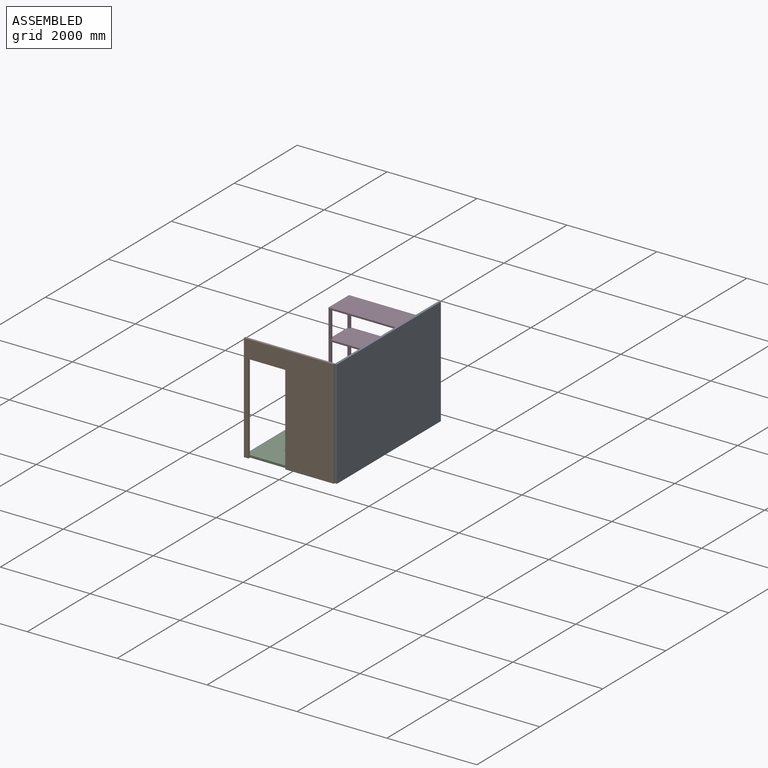
[diagram: assembled view]
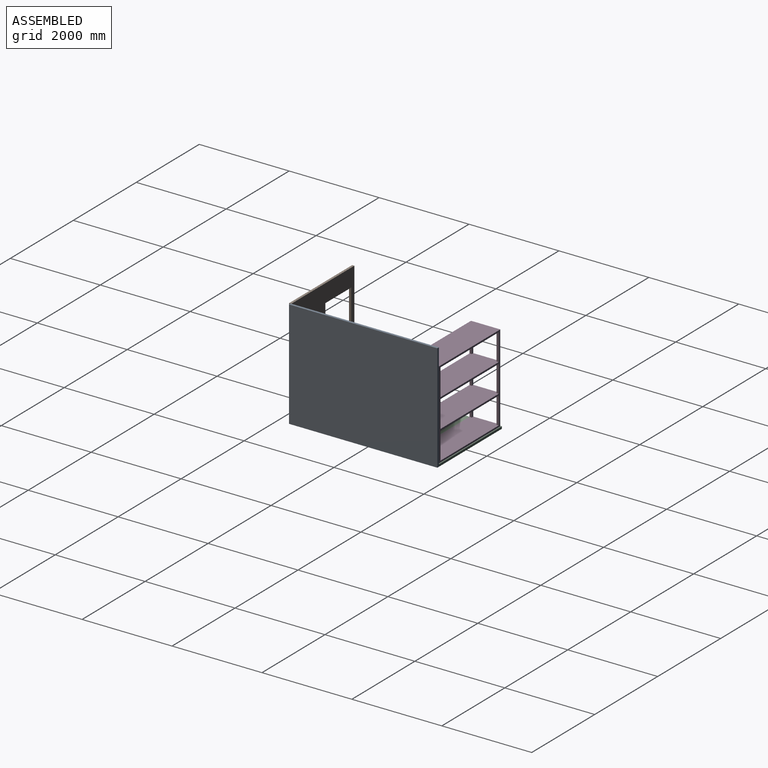
[diagram: assembled view, second angle]
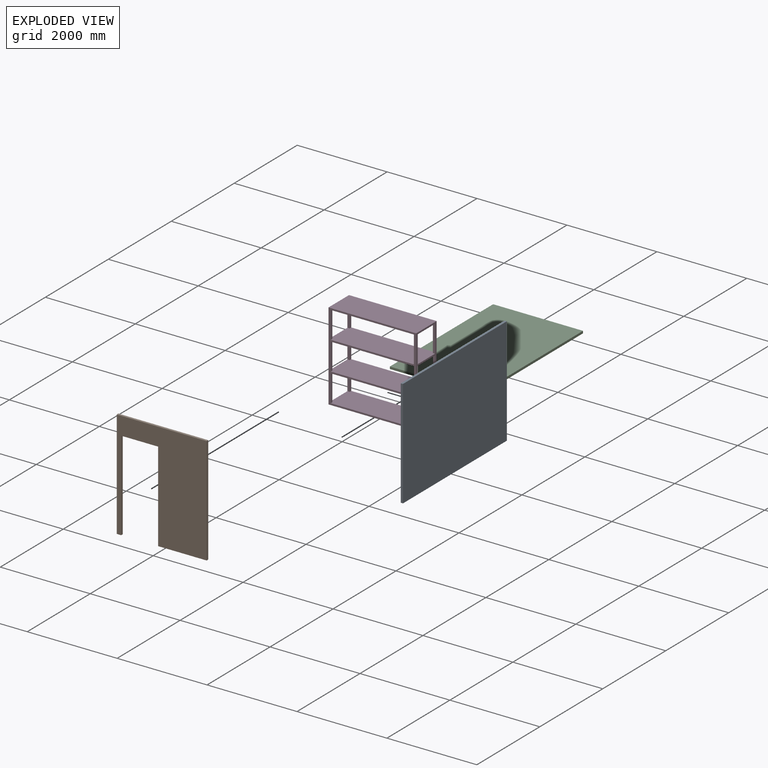
[diagram: exploded view]
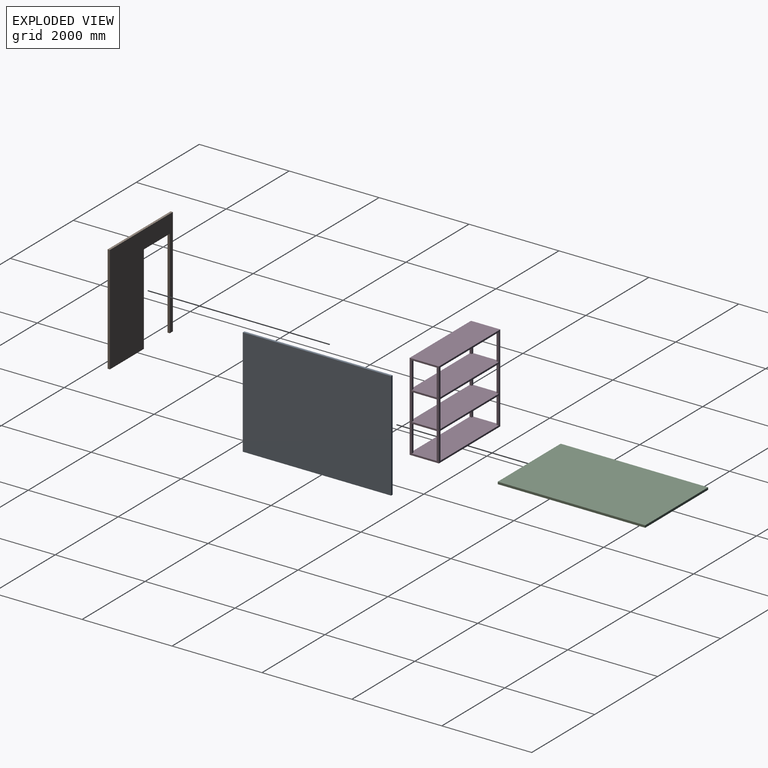
[diagram: exploded view, second angle]
ASSEMBLY  parts=4 mates=7
PART A: 6 faces, bbox 50x3300x2400 mm
  f0: plane 2400x50mm, normal (0,-1,0), area 120000mm2, adj f1,f3,f4,f5
  f1: plane 3300x50mm, normal (0,0,-1), area 165000mm2, adj f0,f2,f4,f5
  f2: plane 2400x50mm, normal (0,1,0), area 120000mm2, adj f1,f3,f4,f5
  f3: plane 3300x50mm, normal (0,0,1), area 165000mm2, adj f0,f2,f4,f5
  f4: plane 3300x2400mm, normal (1,0,0), area 7920000mm2, adj f0,f1,f2,f3
  f5: plane 3300x2400mm, normal (-1,0,0), area 7920000mm2, adj f0,f1,f2,f3
PART B: 10 faces, bbox 2000x50x2400 mm
  f0: plane 1080x50mm, normal (0,0,-1), area 54000mm2, adj f3,f5,f6,f7
  f1: plane 2400x50mm, normal (-1,0,0), area 120000mm2, adj f2,f4,f5,f6
  f2: plane 100x50mm, normal (0,0,-1), area 5000mm2, adj f1,f5,f6,f9
  f3: plane 2400x50mm, normal (1,0,0), area 120000mm2, adj f0,f4,f5,f6
  f4: plane 2000x50mm, normal (0,0,1), area 100000mm2, adj f1,f3,f5,f6
  f5: plane 2400x2000mm, normal (0,-1,0), area 3160000mm2, adj f0,f1,f2,f3,f4,f7,f8,f9
  f6: plane 2400x2000mm, normal (0,1,0), area 3160000mm2, adj f0,f1,f2,f3,f4,f7,f8,f9
  f7: plane 2000x50mm, normal (-1,0,0), area 100000mm2, adj f0,f5,f6,f8
  f8: plane 820x50mm, normal (0,0,-1), area 41000mm2, adj f5,f6,f7,f9
  f9: plane 2000x50mm, normal (1,0,0), area 100000mm2, adj f2,f5,f6,f8
PART C: 6 faces, bbox 2000x3280x50 mm
  f0: plane 3280x50mm, normal (-1,0,0), area 164000mm2, adj f1,f3,f4,f5
  f1: plane 2000x50mm, normal (0,-1,0), area 100000mm2, adj f0,f2,f4,f5
  f2: plane 3280x50mm, normal (1,0,0), area 164000mm2, adj f1,f3,f4,f5
  f3: plane 2000x50mm, normal (0,1,0), area 100000mm2, adj f0,f2,f4,f5
  f4: plane 3280x2000mm, normal (0,0,1), area 6560000mm2, adj f0,f1,f2,f3
  f5: plane 3280x2000mm, normal (0,0,-1), area 6560000mm2, adj f0,f1,f2,f3
PART D: 36 faces, bbox 1950x650x1950 mm
  f0: plane 1950x650mm, normal (-1,0,0), area 277500mm2, adj f8,f9,f10,f11,f12,f14,f16,f18
  f1: plane 1950x650mm, normal (1,0,0), area 277500mm2, adj f8,f9,f10,f11,f12,f14,f16,f18
  f2: plane 600x50mm, normal (1,0,0), area 30000mm2, adj f9,f12,f14,f34
  f3: plane 600x50mm, normal (-1,0,0), area 30000mm2, adj f9,f12,f14,f33
  f4: plane 600x50mm, normal (1,0,0), area 30000mm2, adj f9,f16,f18,f30
  f5: plane 600x50mm, normal (-1,0,0), area 30000mm2, adj f9,f16,f18,f29
  f6: plane 600x50mm, normal (1,0,0), area 30000mm2, adj f9,f20,f22,f26
  f7: plane 600x50mm, normal (-1,0,0), area 30000mm2, adj f9,f20,f22,f25
  f8: plane 1950x1950mm, normal (0,-1,0), area 472500mm2, adj f0,f1,f10,f11,f12,f13,f14,f15
  f9: plane 1950x1950mm, normal (0,1,0), area 472500mm2, adj f0,f1,f2,f3,f4,f5,f6,f7
  f10: plane 1950x650mm, normal (0,0,1), area 1267500mm2, adj f0,f1,f8,f9
  f11: plane 1950x650mm, normal (0,0,-1), area 1267500mm2, adj f0,f1,f8,f9
  f12: plane 1950x650mm, normal (0,0,-1), area 1257500mm2, adj f0,f1,f2,f3,f8,f9,f13,f15
  f13: plane 600x50mm, normal (1,0,0), area 30000mm2, adj f8,f12,f14,f35
  f14: plane 1950x650mm, normal (0,0,1), area 1257500mm2, adj f0,f1,f2,f3,f8,f9,f13,f15
  f15: plane 600x50mm, normal (-1,0,0), area 30000mm2, adj f8,f12,f14,f32
  f16: plane 1950x650mm, normal (0,0,-1), area 1257500mm2, adj f0,f1,f4,f5,f8,f9,f17,f19
  f17: plane 600x50mm, normal (1,0,0), area 30000mm2, adj f8,f16,f18,f31
  f18: plane 1950x650mm, normal (0,0,1), area 1257500mm2, adj f0,f1,f4,f5,f8,f9,f17,f19
  f19: plane 600x50mm, normal (-1,0,0), area 30000mm2, adj f8,f16,f18,f28
  f20: plane 1950x650mm, normal (0,0,-1), area 1257500mm2, adj f0,f1,f6,f7,f8,f9,f21,f23
  f21: plane 600x50mm, normal (1,0,0), area 30000mm2, adj f8,f20,f22,f27
  f22: plane 1950x650mm, normal (0,0,1), area 1257500mm2, adj f0,f1,f6,f7,f8,f9,f21,f23
  f23: plane 600x50mm, normal (-1,0,0), area 30000mm2, adj f8,f20,f22,f24
  f24: plane 600x50mm, normal (0,1,0), area 30000mm2, adj f1,f20,f22,f23
  f25: plane 600x50mm, normal (0,-1,0), area 30000mm2, adj f1,f7,f20,f22
  f26: plane 600x50mm, normal (0,-1,0), area 30000mm2, adj f0,f6,f20,f22
  f27: plane 600x50mm, normal (0,1,0), area 30000mm2, adj f0,f20,f21,f22
  f28: plane 600x50mm, normal (0,1,0), area 30000mm2, adj f1,f16,f18,f19
  f29: plane 600x50mm, normal (0,-1,0), area 30000mm2, adj f1,f5,f16,f18
  f30: plane 600x50mm, normal (0,-1,0), area 30000mm2, adj f0,f4,f16,f18
  f31: plane 600x50mm, normal (0,1,0), area 30000mm2, adj f0,f16,f17,f18
  f32: plane 600x50mm, normal (0,1,0), area 30000mm2, adj f1,f12,f14,f15
  f33: plane 600x50mm, normal (0,-1,0), area 30000mm2, adj f1,f3,f12,f14
  f34: plane 600x50mm, normal (0,-1,0), area 30000mm2, adj f0,f2,f12,f14
  f35: plane 600x50mm, normal (0,1,0), area 30000mm2, adj f0,f12,f13,f14
PLACE A t=(1002.24,-1664.45,-25)mm
PLACE B t=(-997.76,-1644.45,-25)mm
PLACE C t=(-997.76,-1644.45,-25)mm fixed
PLACE D t=(-976.45,965.14,25)mm
MATE planar C.f1 <-> B.f6  axis (0,-1,0) through (2.24,-1644.45,0)mm
MATE planar C.f5 <-> B.f0  axis (0,0,-1) through (2.24,-4.45,-25)mm
MATE planar C.f2 <-> A.f5  axis (1,0,0) through (1002.24,-4.45,0)mm
MATE planar B.f1 <-> C.f0  axis (-1,0,0) through (-997.76,-1669.45,1175)mm
MATE planar D.f11 <-> C.f4  axis (0,0,-1) through (-1.45,1290.14,25)mm
MATE planar A.f2 <-> C.f3  axis (0,1,0) through (1027.24,1635.55,1175)mm
MATE planar A.f1 <-> C.f5  axis (0,0,-1) through (1027.24,-14.45,-25)mm
